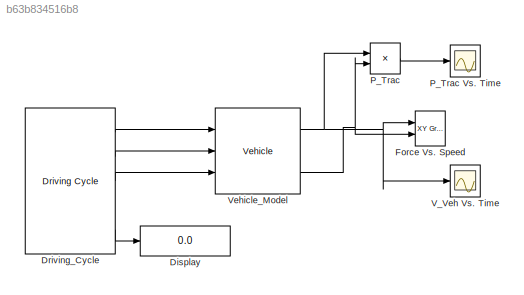
MODEL slx_b63b834516b8
KIND model
CONFIG AbsTol = auto
CONFIG EnableMultiTasking = off
CONFIG FixedStep = auto
CONFIG MaxStep = auto
CONFIG MinStep = auto
CONFIG RelTol = 1e-3
CONFIG SampleTimeConstraint = Unconstrained
CONFIG Solver = VariableStepAuto
CONFIG SolverName = VariableStepAuto
CONFIG StartTime = 0.0
CONFIG StopTime = 1220
BLOCK [Display] Display
  Decimation = 1
  Ports = [1]
BLOCK [Reference] Driving_Cycle  REF=qss_tb_library/Driving Cycle/Driving Cycle  (lib defined in mdl_a75e96b0ff2a, mdl_aad2a3137e65)
  Ports = [0, 5]
  SourceBlock = qss_tb_library/Driving Cycle/Driving Cycle
  SourceType = Driving Cycle
  Tag = cycle
BLOCK [Reference] Force Vs. Speed  REF=simulink/Sinks/XY Graph
  Ports = [2]
  SourceBlock = simulink/Sinks/XY Graph
  SourceProductBaseCode = SL
  SourceProductName = Simulink
  SourceType = XY scope.
BLOCK [Product] P_Trac
  InputSameDT = off
  OutDataTypeStr = Inherit: Inherit via internal rule
  Ports = [2, 1]
  RndMeth = Floor
  SaturateOnIntegerOverflow = off
BLOCK [Scope] P_Trac Vs. Time
  Floating = off
  NumInputPorts = 1
  Ports = [1]
  ScopeSpecificationString = Simulink.scopes.TimeScopeBlockCfg('CurrentConfiguration', extmgr.ConfigurationSet(extmgr.Configuration('Core','General UI',true),extmgr.Configuration('Core','Source UI',true),extmgr.Configuration('Sources','WiredSimulink',true),extmgr.Configuration('Visuals','Time Domain',true,'SerializedDisplays',{struct('MinYLimReal','-39853.22924','MaxYLimReal','64113.27423','YLabelReal','','MinYLimMag','   0.0...<+1411ch>
BLOCK [Scope] V_Veh Vs. Time
  Floating = off
  NumInputPorts = 1
  Ports = [1]
  ScopeSpecificationString = Simulink.scopes.TimeScopeBlockCfg('CurrentConfiguration', extmgr.ConfigurationSet(extmgr.Configuration('Core','General UI',true),extmgr.Configuration('Core','Source UI',true),extmgr.Configuration('Sources','WiredSimulink',true,'DataLoggingVariableName','ScopeData1'),extmgr.Configuration('Visuals','Time Domain',true,'SerializedDisplays',{struct('MinYLimReal','-4.16667','MaxYLimReal','37.5','YLabelR...<+1416ch>
BLOCK [Reference] Vehicle_Model  REF=qss_tb_library/Vehicle/Vehicle  (lib defined in mdl_a75e96b0ff2a, mdl_aad2a3137e65)
  Ports = [3, 3]
  SourceBlock = qss_tb_library/Vehicle/Vehicle
  SourceType = Vehicle
  Tag = vehicle
LINE Driving_Cycle:1 -> Vehicle_Model:1
LINE Driving_Cycle:2 -> Vehicle_Model:2
LINE Driving_Cycle:3 -> Vehicle_Model:3
LINE Driving_Cycle:5 -> Display:1
LINE P_Trac:1 -> P_Trac Vs. Time:1
NET Vehicle_Model:1 -> Force Vs. Speed:1, P_Trac:1, V_Veh Vs. Time:1
NET Vehicle_Model:3 -> Force Vs. Speed:2, P_Trac:2
note: NET lines group one-source signal fan-out (src -> all destinations, sorted); 1:1 wires keep LINE
